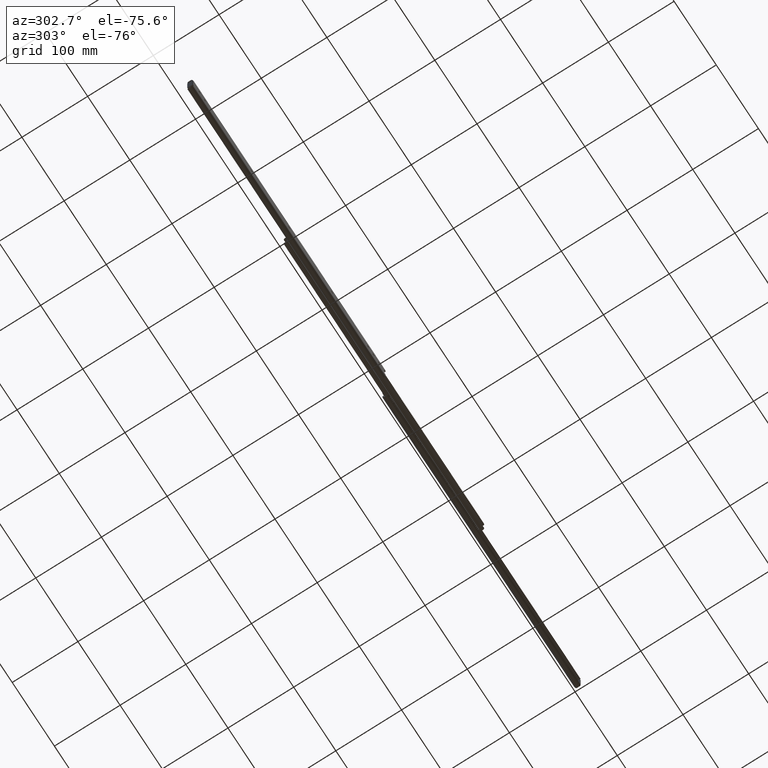
[diagram: clean part render]
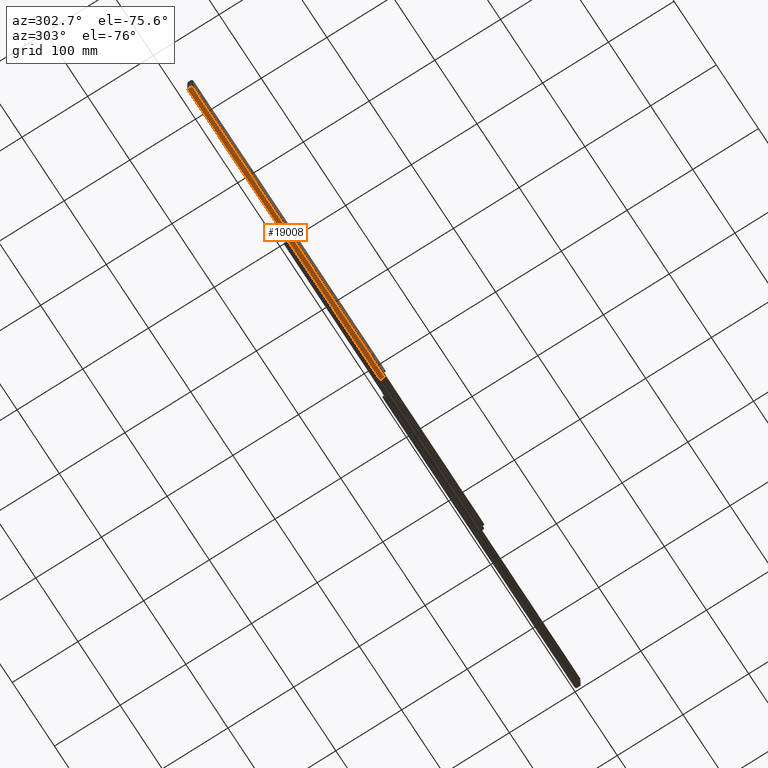
[diagram: same view with one face highlighted and labeled with its STEP entity id]
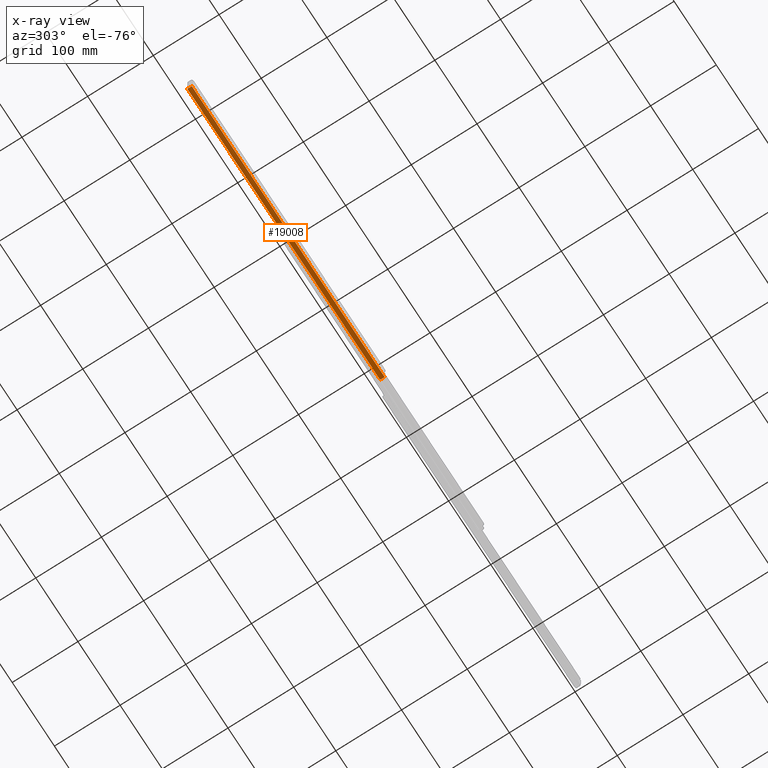
[diagram: x-ray of the same camera — body ghosted, the highlighted face saturated]
A machine part, auxiliary view. The second image highlights one B-rep face of the part: STEP entity #19008.
The next image is the same camera in x-ray: the body ghosted, the highlighted face saturated — about 0% of this face is hidden behind the body in this view.
In plain terms, the highlighted face is a freeform B-spline surface patch.
Its self-contained STEP definition (entity closure, byte-faithful):
#17287=CARTESIAN_POINT('',(-934.399999999999980,-10.400000000001899,-15.138563000000000));
#17288=VERTEX_POINT('',#17287);
#17294=CARTESIAN_POINT('',(-936.0,-11.302638518558039,-16.501614328666999));
#17295=VERTEX_POINT('',#17294);
#17296=CARTESIAN_POINT('',(-936.0,-11.302638518558039,-16.501614328666999));
#17297=CARTESIAN_POINT('',(-936.0,-11.226194378669719,-16.426128224287869));
#17298=CARTESIAN_POINT('',(-935.990997167615660,-11.153967461247159,-16.348703276690401));
#17299=CARTESIAN_POINT('',(-935.963169050456710,-11.051633304873580,-16.230104814364619));
#17300=CARTESIAN_POINT('',(-935.951493122542500,-11.018525127649680,-16.190162409486319));
#17301=CARTESIAN_POINT('',(-935.923026400910540,-10.954286012377370,-16.109547295088859));
#17302=CARTESIAN_POINT('',(-935.906181411615990,-10.923146480551850,-16.068838561061209));
#17303=CARTESIAN_POINT('',(-935.848901241948850,-10.834730384180380,-15.948717804248581));
#17304=CARTESIAN_POINT('',(-935.801481476454910,-10.781641194931231,-15.870322937538960));
#17305=CARTESIAN_POINT('',(-935.715997520897990,-10.709667376941630,-15.756336050085480));
#17306=CARTESIAN_POINT('',(-935.684895276480800,-10.686836357172860,-15.718734330918320));
#17307=CARTESIAN_POINT('',(-935.618681467104580,-10.644274570758091,-15.646143124145601));
#17308=CARTESIAN_POINT('',(-935.583679256985530,-10.624571911343510,-15.611224698659910));
#17309=CARTESIAN_POINT('',(-935.473109611601790,-10.569668153574961,-15.510742340940460));
#17310=CARTESIAN_POINT('',(-935.391907230750460,-10.538598879035151,-15.449330065200479));
#17311=CARTESIAN_POINT('',(-935.214682063336800,-10.485921557495100,-15.339821609602710));
#17312=CARTESIAN_POINT('',(-935.121416271146240,-10.465089665041230,-15.293401310449889));
#17313=CARTESIAN_POINT('',(-934.974798504471320,-10.440343941464180,-15.236454519678510));
#17314=CARTESIAN_POINT('',(-934.924797603847760,-10.433193577024710,-15.219599340662031));
#17315=CARTESIAN_POINT('',(-934.822479874296850,-10.420955952404270,-15.190340587791299));
#17316=CARTESIAN_POINT('',(-934.770336387124640,-10.415901287043020,-15.178014943014769));
#17317=CARTESIAN_POINT('',(-934.613514909314740,-10.403920714511610,-15.148547015818499));
#17318=CARTESIAN_POINT('',(-934.507505410237970,-10.399999847408990,-15.138563060668570));
#17319=CARTESIAN_POINT('',(-934.399999999999980,-10.400000000001899,-15.138563000000000));
#17320=B_SPLINE_CURVE_WITH_KNOTS('',3,(#17296,#17297,#17298,#17299,#17300,#17301,#17302,#17303,#17304,#17305,#17306,#17307,#17308,#17309,#17310,#17311,#17312,#17313,#17314,#17315,#17316,#17317,#17318,#17319),.UNSPECIFIED.,.F.,.U.,(4,2,2,2,2,2,2,2,2,2,2,4),(0.0,0.125000000000019,0.187500000000015,0.250000000000012,0.375000000000008,0.437500000000007,0.500000000000005,0.625000000000004,0.750000000000002,0.812500000000002,0.875000000000001,1.0),.UNSPECIFIED.);
#17321=EDGE_CURVE('',#17295,#17288,#17320,.T.);
#17472=CARTESIAN_POINT('',(-479.0,-11.302638518558039,-16.501614328666999));
#17473=VERTEX_POINT('',#17472);
#17479=CARTESIAN_POINT('',(-480.600000000000020,-10.400000000001899,-15.138563000000000));
#17480=VERTEX_POINT('',#17479);
#17481=CARTESIAN_POINT('',(-480.600000000000020,-10.400000000001899,-15.138563000000000));
#17482=CARTESIAN_POINT('',(-480.492489346427420,-10.400000000001899,-15.138563000000000));
#17483=CARTESIAN_POINT('',(-480.386802597449620,-10.403921634059619,-15.148546628419600));
#17484=CARTESIAN_POINT('',(-480.230898281170880,-10.415794543109330,-15.177753697955970));
#17485=CARTESIAN_POINT('',(-480.179371178589120,-10.420764655174541,-15.189876962639911));
#17486=CARTESIAN_POINT('',(-480.077220936446510,-10.432923174150920,-15.218958860897070));
#17487=CARTESIAN_POINT('',(-480.026542471616890,-10.440137817476030,-15.235973860708580));
#17488=CARTESIAN_POINT('',(-479.879285968175220,-10.464931427627009,-15.293049567586920));
#17489=CARTESIAN_POINT('',(-479.786269993977610,-10.485727776226950,-15.339377883525080));
#17490=CARTESIAN_POINT('',(-479.654471023954610,-10.524770371690940,-15.420602472359700));
#17491=CARTESIAN_POINT('',(-479.611609034011790,-10.539195613235110,-15.449821699886090));
#17492=CARTESIAN_POINT('',(-479.529773989184600,-10.570629313262170,-15.511326141312800));
#17493=CARTESIAN_POINT('',(-479.490915097730690,-10.587569182213050,-15.543485633997831));
#17494=CARTESIAN_POINT('',(-479.380335841869000,-10.642366928868480,-15.643828389948609));
#17495=CARTESIAN_POINT('',(-479.314560355011680,-10.684161304596181,-15.715845930874510));
#17496=CARTESIAN_POINT('',(-479.228090507058880,-10.756635705757050,-15.830767068307241));
#17497=CARTESIAN_POINT('',(-479.201657300693510,-10.782170356379170,-15.869798196113161));
#17498=CARTESIAN_POINT('',(-479.153883464229410,-10.835615059044860,-15.948310848709159));
#17499=CARTESIAN_POINT('',(-479.111018305232680,-10.891588012186940,-16.027518729750330));
#17500=CARTESIAN_POINT('',(-479.077677865162510,-10.952901366477180,-16.107761194241959));
#17501=CARTESIAN_POINT('',(-479.049067677373390,-11.017063850308990,-16.188374994257561));
#17502=CARTESIAN_POINT('',(-479.037150048001710,-11.050613894494649,-16.228898804542300));
#17503=CARTESIAN_POINT('',(-479.009006493843120,-11.153651154114710,-16.348385027066239));
#17504=CARTESIAN_POINT('',(-478.999999999999890,-11.226162783749929,-16.426097025331099));
#17505=CARTESIAN_POINT('',(-479.0,-11.302638518558060,-16.501614328666999));
#17506=B_SPLINE_CURVE_WITH_KNOTS('',3,(#17481,#17482,#17483,#17484,#17485,#17486,#17487,#17488,#17489,#17490,#17491,#17492,#17493,#17494,#17495,#17496,#17497,#17498,#17499,#17500,#17501,#17502,#17503,#17504,#17505),.UNSPECIFIED.,.F.,.U.,(4,2,2,2,2,2,2,2,2,1,2,2,4),(0.0,0.125000000000091,0.187500000000104,0.250000000000117,0.375000000000143,0.437500000000129,0.500000000000115,0.625000000000087,0.687500000000072,0.750000000000057,0.812500000000042,0.875000000000027,1.0),.UNSPECIFIED.);
#17507=EDGE_CURVE('',#17480,#17473,#17506,.T.);
#18363=CARTESIAN_POINT('',(-936.0,-17.215175400257049,-16.147869559066450));
#18364=VERTEX_POINT('',#18363);
#18370=CARTESIAN_POINT('',(-935.997873348263970,-17.279057753180350,-16.065402533108699));
#18371=VERTEX_POINT('',#18370);
#18372=CARTESIAN_POINT('',(-935.997873348263970,-17.279057753180350,-16.065402533108699));
#18373=CARTESIAN_POINT('',(-935.999305845689490,-17.258132677995849,-16.093158756250009));
#18374=CARTESIAN_POINT('',(-936.0,-17.236838678767018,-16.120648236860958));
#18375=CARTESIAN_POINT('',(-936.0,-17.215175400256999,-16.147869559066450));
#18376=QUASI_UNIFORM_CURVE('',3,(#18372,#18373,#18374,#18375),.UNSPECIFIED.,.F.,.U.);
#18377=EDGE_CURVE('',#18371,#18364,#18376,.T.);
#18554=CARTESIAN_POINT('',(-936.0,-11.302638518558039,-16.501614328666999));
#18555=CARTESIAN_POINT('',(-936.0,-12.565766176206328,-17.748911850082159));
#18556=CARTESIAN_POINT('',(-936.0,-14.337771449617900,-17.642893467496808));
#18557=CARTESIAN_POINT('',(-936.0,-16.109776723029480,-17.536875084911454));
#18558=CARTESIAN_POINT('',(-936.0,-17.215175400257021,-16.147869559066429));
#18566=(BOUNDED_CURVE()B_SPLINE_CURVE(2,(#18554,#18555,#18556,#18557,#18558),.UNSPECIFIED.,.F.,.U.)B_SPLINE_CURVE_WITH_KNOTS((3,2,3),(0.0,0.500000000000000,1.0),.UNSPECIFIED.)CURVE()GEOMETRIC_REPRESENTATION_ITEM()RATIONAL_B_SPLINE_CURVE((1.0,0.913323076196407,1.0,0.913323076196407,1.0))REPRESENTATION_ITEM(''));
#18567=EDGE_CURVE('',#17295,#18364,#18566,.T.);
#18673=CARTESIAN_POINT('',(-479.0,-17.279057753180350,-16.065402533108699));
#18674=VERTEX_POINT('',#18673);
#18675=CARTESIAN_POINT('',(-479.0,-17.279057753180350,-16.065402533108699));
#18676=CARTESIAN_POINT('',(-935.997873348263970,-17.279057753180350,-16.065402533108699));
#18677=QUASI_UNIFORM_CURVE('',1,(#18675,#18676),.UNSPECIFIED.,.F.,.U.);
#18678=EDGE_CURVE('',#18674,#18371,#18677,.T.);
#18700=CARTESIAN_POINT('',(-480.600000000000020,-10.400000000001899,-15.138563000000000));
#18701=CARTESIAN_POINT('',(-934.399999999999980,-10.400000000001899,-15.138563000000000));
#18702=QUASI_UNIFORM_CURVE('',1,(#18700,#18701),.UNSPECIFIED.,.F.,.U.);
#18703=EDGE_CURVE('',#17480,#17288,#18702,.T.);
#18886=CARTESIAN_POINT('',(-479.0,-11.302638518558039,-16.501614328666999));
#18887=CARTESIAN_POINT('',(-479.000000000000060,-12.588078055758068,-17.770944106200130));
#18888=CARTESIAN_POINT('',(-479.0,-14.389815792549649,-17.639437392491370));
#18889=CARTESIAN_POINT('',(-479.000000000000060,-16.191553529341238,-17.507930678782614));
#18890=CARTESIAN_POINT('',(-479.0,-17.279057753180350,-16.065402533108699));
#18898=(BOUNDED_CURVE()B_SPLINE_CURVE(2,(#18886,#18887,#18888,#18889,#18890),.UNSPECIFIED.,.F.,.U.)B_SPLINE_CURVE_WITH_KNOTS((3,2,3),(0.0,0.500000000000000,1.0),.UNSPECIFIED.)CURVE()GEOMETRIC_REPRESENTATION_ITEM()RATIONAL_B_SPLINE_CURVE((1.0,0.910635851455392,1.0,0.910635851455392,1.0))REPRESENTATION_ITEM(''));
#18899=EDGE_CURVE('',#17473,#18674,#18898,.T.);
#18985=CARTESIAN_POINT('',(-467.574999999999990,-17.367823202231609,-15.942883479255251));
#18986=CARTESIAN_POINT('',(-947.710625000000160,-17.367823202231609,-15.942883479255251));
#18987=CARTESIAN_POINT('',(-467.575000000000100,-12.705158593450468,-22.642913944388653));
#18988=CARTESIAN_POINT('',(-947.710625000000160,-12.705158593450468,-22.642913944388653));
#18989=CARTESIAN_POINT('',(-467.574999999999990,-10.296085509423630,-14.843733451316760));
#18990=CARTESIAN_POINT('',(-947.710625000000160,-10.296085509423630,-14.843733451316760));
#18998=(BOUNDED_SURFACE()B_SPLINE_SURFACE(1,2,((#18985,#18987,#18989),(#18986,#18988,#18990)),.UNSPECIFIED.,.F.,.F.,.U.)B_SPLINE_SURFACE_WITH_KNOTS((2,2),(3,3),(0.0,480.135625000000180),(0.0,9.951044429156045),.UNSPECIFIED.)GEOMETRIC_REPRESENTATION_ITEM()RATIONAL_B_SPLINE_SURFACE(((1.0,0.438371146789078,1.0),(1.0,0.438371146789078,1.0)))REPRESENTATION_ITEM('')SURFACE());
#18999=ORIENTED_EDGE('',*,*,#18703,.F.);
#19000=ORIENTED_EDGE('',*,*,#17507,.T.);
#19001=ORIENTED_EDGE('',*,*,#18899,.T.);
#19002=ORIENTED_EDGE('',*,*,#18678,.T.);
#19003=ORIENTED_EDGE('',*,*,#18377,.T.);
#19004=ORIENTED_EDGE('',*,*,#18567,.F.);
#19005=ORIENTED_EDGE('',*,*,#17321,.T.);
#19006=EDGE_LOOP('',(#18999,#19000,#19001,#19002,#19003,#19004,#19005));
#19007=FACE_OUTER_BOUND('',#19006,.T.);
#19008=ADVANCED_FACE('',(#19007),#18998,.T.);